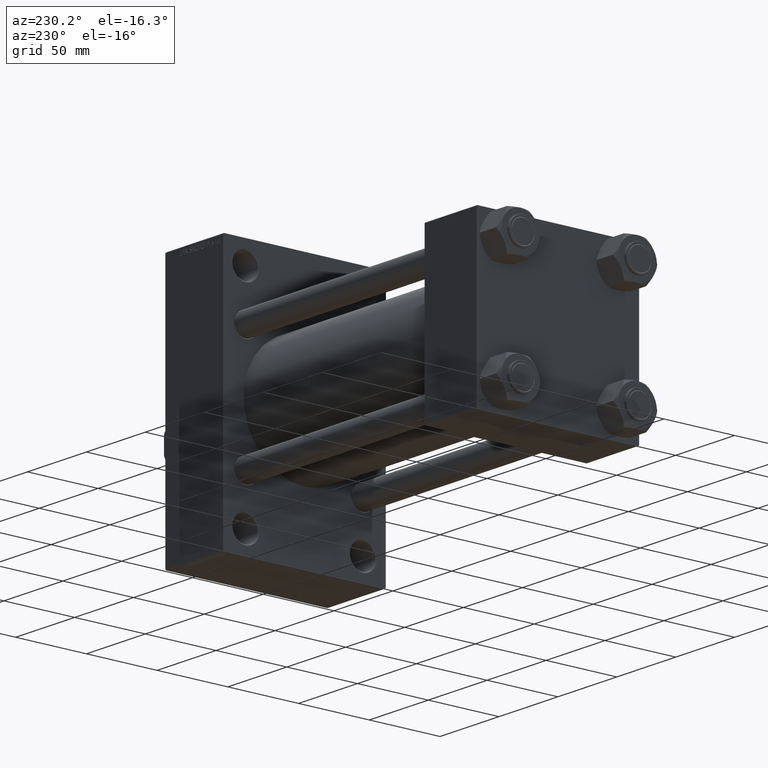
[diagram: clean part render]
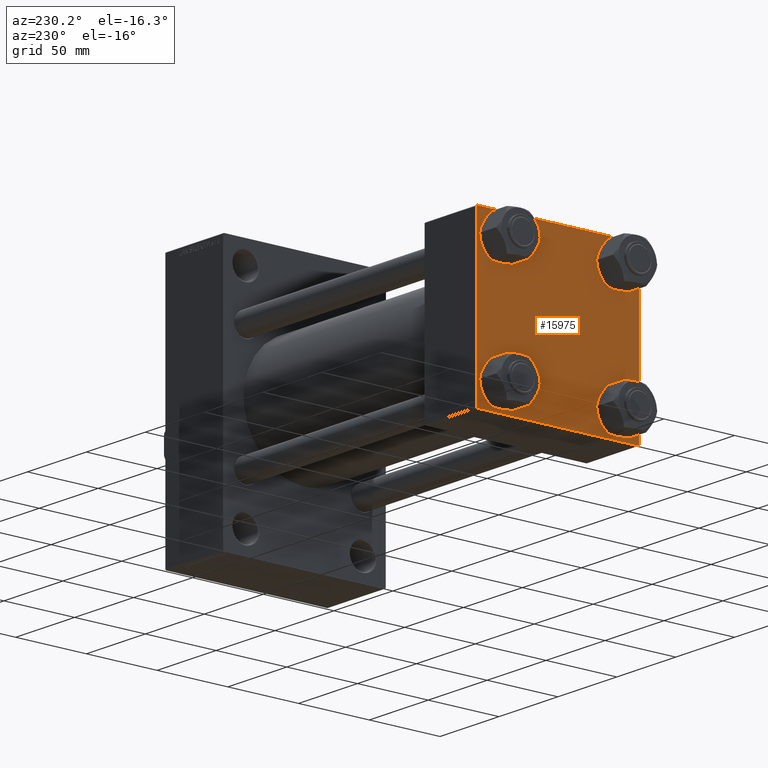
[diagram: same view with one face highlighted and labeled with its STEP entity id]
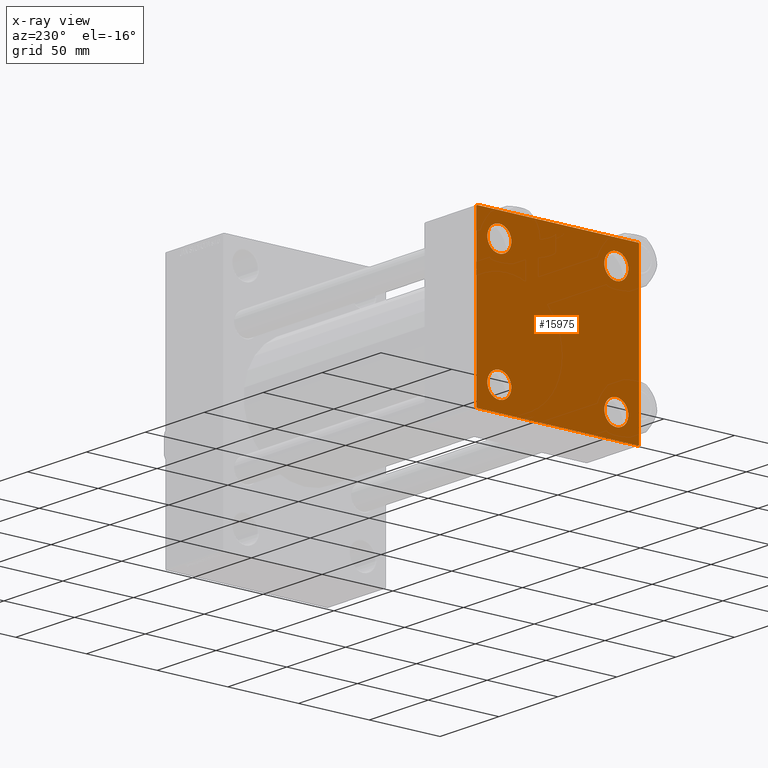
[diagram: x-ray of the same camera — body ghosted, the highlighted face saturated]
A machine part, auxiliary view. The second image highlights one B-rep face of the part: STEP entity #15975.
The next image is the same camera in x-ray: the body ghosted, the highlighted face saturated — about 0% of this face is hidden behind the body in this view.
In plain terms, the highlighted planar face has unit normal (-1, 0, 0).
Its self-contained STEP definition (entity closure, byte-faithful):
#305 = DIRECTION ( 'NONE',  ( 1.000000000000000000, -0.000000000000000000, 0.000000000000000000 ) ) ;
#310 = VERTEX_POINT ( 'NONE', #24300 ) ;
#1504 = DIRECTION ( 'NONE',  ( 0.000000000000000000, 0.7071067811865573427, -0.7071067811865376918 ) ) ;
#1542 = DIRECTION ( 'NONE',  ( 1.000000000000000000, -0.000000000000000000, 0.000000000000000000 ) ) ;
#1547 = EDGE_CURVE ( 'NONE', #4266, #25940, #16267, .T. ) ;
#1628 = DIRECTION ( 'NONE',  ( 0.000000000000000000, 0.000000000000000000, 1.000000000000000000 ) ) ;
#2351 = EDGE_LOOP ( 'NONE', ( #13107, #20533 ) ) ;
#2669 = ORIENTED_EDGE ( 'NONE', *, *, #25334, .T. ) ;
#3266 = EDGE_CURVE ( 'NONE', #44984, #45087, #21705, .T. ) ;
#3962 = VERTEX_POINT ( 'NONE', #45954 ) ;
#4149 = DIRECTION ( 'NONE',  ( 0.000000000000000000, 0.000000000000000000, 1.000000000000000000 ) ) ;
#4266 = VERTEX_POINT ( 'NONE', #16593 ) ;
#4683 = DIRECTION ( 'NONE',  ( 1.000000000000000000, -0.000000000000000000, 0.000000000000000000 ) ) ;
#5282 = DIRECTION ( 'NONE',  ( 1.000000000000000000, -0.000000000000000000, 0.000000000000000000 ) ) ;
#5863 = ORIENTED_EDGE ( 'NONE', *, *, #9810, .T. ) ;
#5866 = DIRECTION ( 'NONE',  ( 0.000000000000000000, 0.000000000000000000, 1.000000000000000000 ) ) ;
#6127 = EDGE_LOOP ( 'NONE', ( #19042, #42316 ) ) ;
#6416 = CIRCLE ( 'NONE', #12620, 8.499999999999992895 ) ;
#6428 = AXIS2_PLACEMENT_3D ( 'NONE', #32504, #305, #25458 ) ;
#7403 = LINE ( 'NONE', #17785, #42630 ) ;
#7804 = VERTEX_POINT ( 'NONE', #34822 ) ;
#8472 = VERTEX_POINT ( 'NONE', #36932 ) ;
#8841 = DIRECTION ( 'NONE',  ( -0.000000000000000000, -0.7071067811865376918, -0.7071067811865573427 ) ) ;
#9308 = LINE ( 'NONE', #45639, #24237 ) ;
#9402 = VERTEX_POINT ( 'NONE', #35447 ) ;
#9719 = VERTEX_POINT ( 'NONE', #21849 ) ;
#9781 = EDGE_LOOP ( 'NONE', ( #21398, #23554 ) ) ;
#9810 = EDGE_CURVE ( 'NONE', #36948, #310, #16038, .T. ) ;
#10004 = PLANE ( 'NONE',  #35929 ) ;
#10722 = FACE_BOUND ( 'NONE', #9781, .T. ) ;
#10798 = ORIENTED_EDGE ( 'NONE', *, *, #37474, .F. ) ;
#11129 = EDGE_CURVE ( 'NONE', #25940, #4266, #6416, .T. ) ;
#11783 = VECTOR ( 'NONE', #1504, 1000.000000000000114 ) ;
#12365 = VERTEX_POINT ( 'NONE', #34040 ) ;
#12620 = AXIS2_PLACEMENT_3D ( 'NONE', #38204, #16860, #1628 ) ;
#13107 = ORIENTED_EDGE ( 'NONE', *, *, #37467, .T. ) ;
#13866 = DIRECTION ( 'NONE',  ( -1.000000000000000000, 0.000000000000000000, -0.000000000000000000 ) ) ;
#14049 = ORIENTED_EDGE ( 'NONE', *, *, #18804, .T. ) ;
#14352 = FACE_BOUND ( 'NONE', #35347, .T. ) ;
#15544 = AXIS2_PLACEMENT_3D ( 'NONE', #19684, #4683, #23544 ) ;
#15732 = CIRCLE ( 'NONE', #6428, 8.499999999999992895 ) ;
#15975 = ADVANCED_FACE ( 'NONE', ( #14352, #10722, #46807, #43174, #46565 ), #10004, .T. ) ;
#16038 = LINE ( 'NONE', #16265, #11783 ) ;
#16265 = CARTESIAN_POINT ( 'NONE',  ( 0.000000000000000000, 57.24999999999922551, 57.25000000000081712 ) ) ;
#16267 = CIRCLE ( 'NONE', #32501, 8.499999999999992895 ) ;
#16303 = CARTESIAN_POINT ( 'NONE',  ( 0.000000000000000000, -57.50000000000000711, 57.49999999999999289 ) ) ;
#16472 = DIRECTION ( 'NONE',  ( 0.000000000000000000, -1.000000000000000000, -1.206764157201257045E-16 ) ) ;
#16593 = CARTESIAN_POINT ( 'NONE',  ( 0.000000000000000000, 41.34999999999999432, -49.85000000000000142 ) ) ;
#16735 = CARTESIAN_POINT ( 'NONE',  ( 0.000000000000000000, -41.34999999999998721, -32.85000000000001563 ) ) ;
#16860 = DIRECTION ( 'NONE',  ( 1.000000000000000000, -0.000000000000000000, 0.000000000000000000 ) ) ;
#17066 = AXIS2_PLACEMENT_3D ( 'NONE', #23691, #38486, #31207 ) ;
#17583 = DIRECTION ( 'NONE',  ( 0.000000000000000000, 0.000000000000000000, -1.000000000000000000 ) ) ;
#17785 = CARTESIAN_POINT ( 'NONE',  ( 0.000000000000000000, -57.25000000000000711, -57.25000000000000711 ) ) ;
#18804 = EDGE_CURVE ( 'NONE', #9719, #40071, #37090, .T. ) ;
#19042 = ORIENTED_EDGE ( 'NONE', *, *, #11129, .T. ) ;
#19319 = CARTESIAN_POINT ( 'NONE',  ( 0.000000000000000000, 57.00000000000002132, -57.49999999999999289 ) ) ;
#19457 = EDGE_CURVE ( 'NONE', #9402, #12365, #33995, .T. ) ;
#19684 = CARTESIAN_POINT ( 'NONE',  ( 0.000000000000000000, -41.34999999999998721, -41.35000000000000853 ) ) ;
#20407 = LINE ( 'NONE', #16303, #25064 ) ;
#20533 = ORIENTED_EDGE ( 'NONE', *, *, #31968, .T. ) ;
#20810 = CARTESIAN_POINT ( 'NONE',  ( 0.000000000000000000, 57.49999999999999289, 57.50000000000000711 ) ) ;
#21398 = ORIENTED_EDGE ( 'NONE', *, *, #3266, .T. ) ;
#21705 = CIRCLE ( 'NONE', #15544, 8.499999999999992895 ) ;
#21849 = CARTESIAN_POINT ( 'NONE',  ( 0.000000000000000000, -57.50000000000000711, 57.00000000000000711 ) ) ;
#22112 = VECTOR ( 'NONE', #17583, 1000.000000000000000 ) ;
#22979 = DIRECTION ( 'NONE',  ( 0.000000000000000000, -1.000000000000000000, -1.206764157201257045E-16 ) ) ;
#23544 = DIRECTION ( 'NONE',  ( 0.000000000000000000, 0.000000000000000000, 1.000000000000000000 ) ) ;
#23554 = ORIENTED_EDGE ( 'NONE', *, *, #30611, .T. ) ;
#23691 = CARTESIAN_POINT ( 'NONE',  ( 0.000000000000000000, -41.34999999999998721, 41.35000000000000853 ) ) ;
#24237 = VECTOR ( 'NONE', #8841, 1000.000000000000114 ) ;
#24300 = CARTESIAN_POINT ( 'NONE',  ( 0.000000000000000000, 57.49999999999999289, 57.00000000000003553 ) ) ;
#24328 = CARTESIAN_POINT ( 'NONE',  ( 0.000000000000000000, -57.00000000000000711, -57.50000000000000711 ) ) ;
#25011 = ORIENTED_EDGE ( 'NONE', *, *, #34734, .F. ) ;
#25064 = VECTOR ( 'NONE', #26718, 1000.000000000000000 ) ;
#25334 = EDGE_CURVE ( 'NONE', #12365, #9402, #29438, .T. ) ;
#25458 = DIRECTION ( 'NONE',  ( 0.000000000000000000, 0.000000000000000000, 1.000000000000000000 ) ) ;
#25772 = EDGE_CURVE ( 'NONE', #37149, #7804, #7403, .T. ) ;
#25830 = CIRCLE ( 'NONE', #45966, 8.499999999999992895 ) ;
#25893 = CARTESIAN_POINT ( 'NONE',  ( 0.000000000000000000, -41.34999999999998721, -49.85000000000000853 ) ) ;
#25906 = VECTOR ( 'NONE', #16472, 1000.000000000000000 ) ;
#25940 = VERTEX_POINT ( 'NONE', #26018 ) ;
#26018 = CARTESIAN_POINT ( 'NONE',  ( 0.000000000000000000, 41.34999999999999432, -32.85000000000000853 ) ) ;
#26364 = CARTESIAN_POINT ( 'NONE',  ( 0.000000000000000000, 57.49999999999999289, -57.49999999999999289 ) ) ;
#26607 = LINE ( 'NONE', #26364, #32730 ) ;
#26718 = DIRECTION ( 'NONE',  ( 0.000000000000000000, 0.000000000000000000, -1.000000000000000000 ) ) ;
#26947 = DIRECTION ( 'NONE',  ( 0.000000000000000000, 0.000000000000000000, 1.000000000000000000 ) ) ;
#28235 = EDGE_LOOP ( 'NONE', ( #46122, #44565, #46222, #31904, #10798, #14049, #25011, #5863 ) ) ;
#28963 = CARTESIAN_POINT ( 'NONE',  ( 0.000000000000000000, 57.49999999999999289, 57.50000000000000711 ) ) ;
#29438 = CIRCLE ( 'NONE', #17066, 8.499999999999992895 ) ;
#29821 = CARTESIAN_POINT ( 'NONE',  ( -0.000000000000000000, -57.25000000000081712, 57.24999999999922551 ) ) ;
#30085 = ORIENTED_EDGE ( 'NONE', *, *, #19457, .T. ) ;
#30611 = EDGE_CURVE ( 'NONE', #45087, #44984, #15732, .T. ) ;
#31122 = EDGE_CURVE ( 'NONE', #40751, #37149, #26607, .T. ) ;
#31207 = DIRECTION ( 'NONE',  ( 0.000000000000000000, 0.000000000000000000, 1.000000000000000000 ) ) ;
#31489 = CARTESIAN_POINT ( 'NONE',  ( 0.000000000000000000, 57.00000000000000711, 57.50000000000000711 ) ) ;
#31512 = CARTESIAN_POINT ( 'NONE',  ( 0.000000000000000000, 41.34999999999999432, 41.35000000000000142 ) ) ;
#31904 = ORIENTED_EDGE ( 'NONE', *, *, #25772, .T. ) ;
#31968 = EDGE_CURVE ( 'NONE', #8472, #38043, #36643, .T. ) ;
#32501 = AXIS2_PLACEMENT_3D ( 'NONE', #38459, #5282, #4149 ) ;
#32504 = CARTESIAN_POINT ( 'NONE',  ( 0.000000000000000000, -41.34999999999998721, -41.35000000000000853 ) ) ;
#32730 = VECTOR ( 'NONE', #22979, 1000.000000000000000 ) ;
#33995 = CIRCLE ( 'NONE', #40176, 8.499999999999992895 ) ;
#34040 = CARTESIAN_POINT ( 'NONE',  ( 0.000000000000000000, -41.34999999999998721, 32.85000000000001563 ) ) ;
#34734 = EDGE_CURVE ( 'NONE', #36948, #40071, #46019, .T. ) ;
#34822 = CARTESIAN_POINT ( 'NONE',  ( 0.000000000000000000, -57.50000000000000711, -57.00000000000000711 ) ) ;
#35170 = DIRECTION ( 'NONE',  ( 1.000000000000000000, -0.000000000000000000, 0.000000000000000000 ) ) ;
#35347 = EDGE_LOOP ( 'NONE', ( #30085, #2669 ) ) ;
#35447 = CARTESIAN_POINT ( 'NONE',  ( 0.000000000000000000, -41.34999999999998721, 49.85000000000000853 ) ) ;
#35929 = AXIS2_PLACEMENT_3D ( 'NONE', #47036, #13866, #43653 ) ;
#36329 = VECTOR ( 'NONE', #44601, 1000.000000000000114 ) ;
#36643 = CIRCLE ( 'NONE', #38177, 8.499999999999992895 ) ;
#36932 = CARTESIAN_POINT ( 'NONE',  ( 0.000000000000000000, 41.34999999999999432, 32.85000000000000853 ) ) ;
#36948 = VERTEX_POINT ( 'NONE', #31489 ) ;
#37090 = LINE ( 'NONE', #29821, #36329 ) ;
#37149 = VERTEX_POINT ( 'NONE', #24328 ) ;
#37467 = EDGE_CURVE ( 'NONE', #38043, #8472, #25830, .T. ) ;
#37474 = EDGE_CURVE ( 'NONE', #9719, #7804, #20407, .T. ) ;
#38043 = VERTEX_POINT ( 'NONE', #45262 ) ;
#38177 = AXIS2_PLACEMENT_3D ( 'NONE', #31512, #39732, #39264 ) ;
#38204 = CARTESIAN_POINT ( 'NONE',  ( 0.000000000000000000, 41.34999999999999432, -41.35000000000000142 ) ) ;
#38459 = CARTESIAN_POINT ( 'NONE',  ( 0.000000000000000000, 41.34999999999999432, -41.35000000000000142 ) ) ;
#38486 = DIRECTION ( 'NONE',  ( 1.000000000000000000, -0.000000000000000000, 0.000000000000000000 ) ) ;
#39264 = DIRECTION ( 'NONE',  ( 0.000000000000000000, 0.000000000000000000, 1.000000000000000000 ) ) ;
#39732 = DIRECTION ( 'NONE',  ( 1.000000000000000000, -0.000000000000000000, 0.000000000000000000 ) ) ;
#40071 = VERTEX_POINT ( 'NONE', #41070 ) ;
#40176 = AXIS2_PLACEMENT_3D ( 'NONE', #42425, #35170, #5866 ) ;
#40751 = VERTEX_POINT ( 'NONE', #19319 ) ;
#40838 = LINE ( 'NONE', #28963, #22112 ) ;
#41070 = CARTESIAN_POINT ( 'NONE',  ( 0.000000000000000000, -57.00000000000003553, 57.49999999999999289 ) ) ;
#41088 = EDGE_CURVE ( 'NONE', #310, #3962, #40838, .T. ) ;
#42316 = ORIENTED_EDGE ( 'NONE', *, *, #1547, .T. ) ;
#42425 = CARTESIAN_POINT ( 'NONE',  ( 0.000000000000000000, -41.34999999999998721, 41.35000000000000853 ) ) ;
#42449 = CARTESIAN_POINT ( 'NONE',  ( 0.000000000000000000, 41.34999999999999432, 41.35000000000000142 ) ) ;
#42630 = VECTOR ( 'NONE', #47588, 1000.000000000000114 ) ;
#43174 = FACE_BOUND ( 'NONE', #2351, .T. ) ;
#43653 = DIRECTION ( 'NONE',  ( -0.000000000000000000, 0.000000000000000000, 1.000000000000000000 ) ) ;
#44565 = ORIENTED_EDGE ( 'NONE', *, *, #46743, .T. ) ;
#44601 = DIRECTION ( 'NONE',  ( -0.000000000000000000, 0.7071067811865376918, 0.7071067811865573427 ) ) ;
#44984 = VERTEX_POINT ( 'NONE', #16735 ) ;
#45087 = VERTEX_POINT ( 'NONE', #25893 ) ;
#45262 = CARTESIAN_POINT ( 'NONE',  ( 0.000000000000000000, 41.34999999999999432, 49.85000000000000142 ) ) ;
#45639 = CARTESIAN_POINT ( 'NONE',  ( 0.000000000000000000, 57.25000000000081712, -57.24999999999922551 ) ) ;
#45954 = CARTESIAN_POINT ( 'NONE',  ( 0.000000000000000000, 57.49999999999999289, -57.00000000000000711 ) ) ;
#45966 = AXIS2_PLACEMENT_3D ( 'NONE', #42449, #1542, #26947 ) ;
#46019 = LINE ( 'NONE', #20810, #25906 ) ;
#46122 = ORIENTED_EDGE ( 'NONE', *, *, #41088, .T. ) ;
#46222 = ORIENTED_EDGE ( 'NONE', *, *, #31122, .T. ) ;
#46565 = FACE_OUTER_BOUND ( 'NONE', #28235, .T. ) ;
#46743 = EDGE_CURVE ( 'NONE', #3962, #40751, #9308, .T. ) ;
#46807 = FACE_BOUND ( 'NONE', #6127, .T. ) ;
#47036 = CARTESIAN_POINT ( 'NONE',  ( 0.000000000000000000, 0.000000000000000000, 0.000000000000000000 ) ) ;
#47588 = DIRECTION ( 'NONE',  ( 0.000000000000000000, -0.7071067811865474617, 0.7071067811865474617 ) ) ;